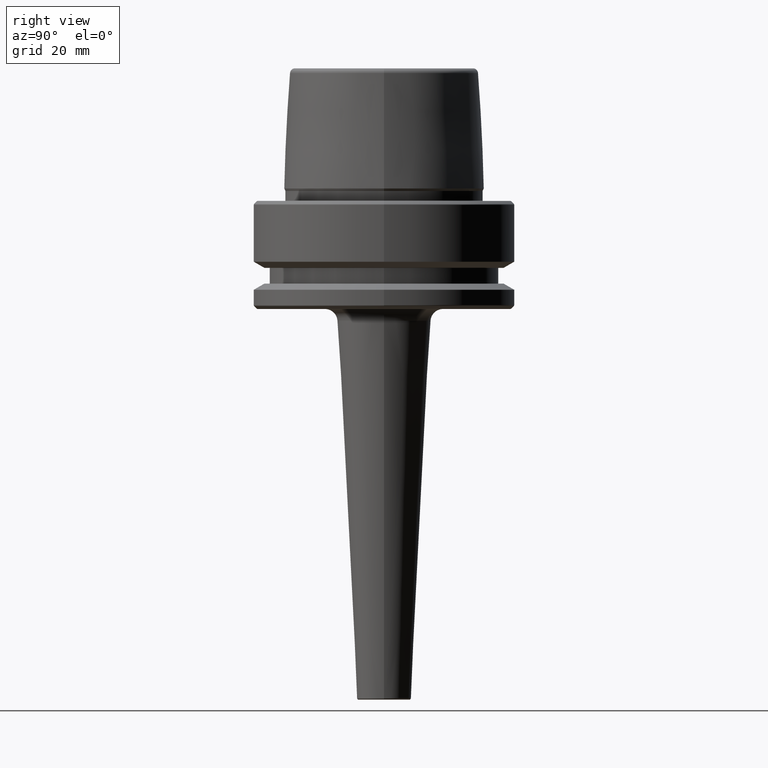
[diagram: clean part render]
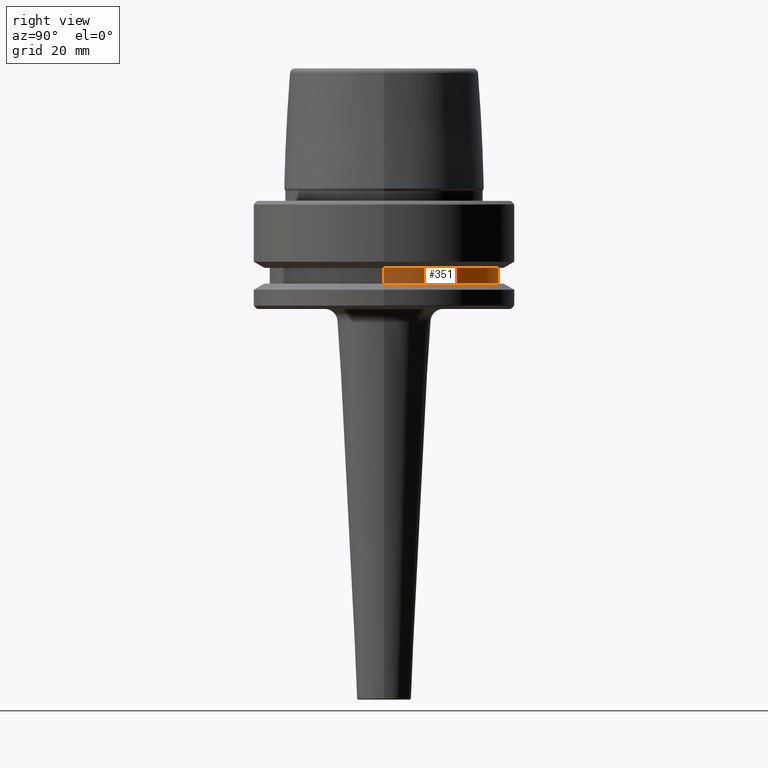
[diagram: same view with one face highlighted and labeled with its STEP entity id]
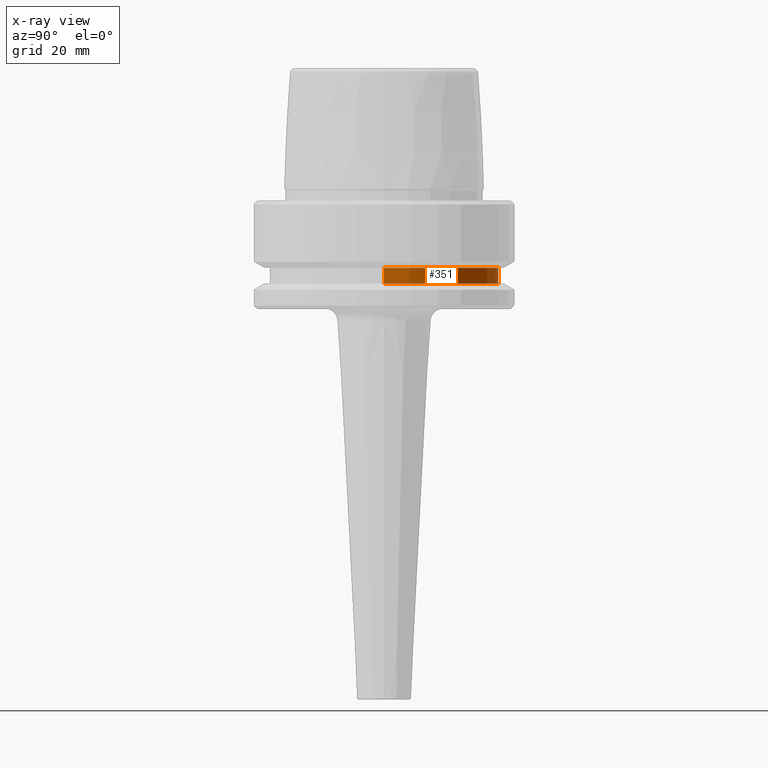
[diagram: x-ray of the same camera — body ghosted, the highlighted face saturated]
A machine part, right view. The second image highlights one B-rep face of the part: STEP entity #351.
The next image is the same camera in x-ray: the body ghosted, the highlighted face saturated — about 0% of this face is hidden behind the body in this view.
In plain terms, the highlighted cylindrical surface (partial cylindrical patch) has radius 27.5 mm, axis along (-0, -0, 1).
Its self-contained STEP definition (entity closure, byte-faithful):
#35 = AXIS2_PLACEMENT_3D ( 'NONE', #57, #913, #644 ) ;
#57 = CARTESIAN_POINT ( 'NONE',  ( 0.0000000000000000000, 0.0000000000000000000, -19.90000000000001600 ) ) ;
#72 = AXIS2_PLACEMENT_3D ( 'NONE', #1113, #833, #544 ) ;
#132 = VERTEX_POINT ( 'NONE', #249 ) ;
#149 = DIRECTION ( 'NONE',  ( 1.000000000000000000, 0.0000000000000000000, 0.0000000000000000000 ) ) ;
#203 = CARTESIAN_POINT ( 'NONE',  ( 27.49999999999999600, 0.0000000000000000000, 78.96908074195309300 ) ) ;
#249 = CARTESIAN_POINT ( 'NONE',  ( -27.49999999999999600, 3.367778697655220900E-015, -16.10000000000001600 ) ) ;
#251 = DIRECTION ( 'NONE',  ( -0.0000000000000000000, -0.0000000000000000000, 1.000000000000000000 ) ) ;
#333 = DIRECTION ( 'NONE',  ( -0.0000000000000000000, -0.0000000000000000000, 1.000000000000000000 ) ) ;
#340 = CARTESIAN_POINT ( 'NONE',  ( -27.49999999999999600, 3.367778697655220900E-015, 78.96908074195309300 ) ) ;
#351 = ADVANCED_FACE ( 'NONE', ( #993 ), #379, .T. ) ;
#353 = ORIENTED_EDGE ( 'NONE', *, *, #590, .T. ) ;
#354 = CARTESIAN_POINT ( 'NONE',  ( 0.0000000000000000000, 0.0000000000000000000, 78.96908074195309300 ) ) ;
#379 = CYLINDRICAL_SURFACE ( 'NONE', #623, 27.49999999999999600 ) ;
#403 = CARTESIAN_POINT ( 'NONE',  ( -27.49999999999999600, 3.367778697655220900E-015, -19.90000000000001600 ) ) ;
#427 = VERTEX_POINT ( 'NONE', #1137 ) ;
#466 = DIRECTION ( 'NONE',  ( -0.0000000000000000000, -0.0000000000000000000, 1.000000000000000000 ) ) ;
#491 = ORIENTED_EDGE ( 'NONE', *, *, #610, .T. ) ;
#523 = ORIENTED_EDGE ( 'NONE', *, *, #719, .F. ) ;
#524 = CIRCLE ( 'NONE', #72, 27.49999999999999600 ) ;
#544 = DIRECTION ( 'NONE',  ( 1.000000000000000000, 0.0000000000000000000, 0.0000000000000000000 ) ) ;
#590 = EDGE_CURVE ( 'NONE', #1139, #132, #724, .T. ) ;
#610 = EDGE_CURVE ( 'NONE', #1003, #1139, #891, .T. ) ;
#614 = EDGE_CURVE ( 'NONE', #427, #132, #524, .T. ) ;
#623 = AXIS2_PLACEMENT_3D ( 'NONE', #354, #466, #149 ) ;
#644 = DIRECTION ( 'NONE',  ( 1.000000000000000000, 0.0000000000000000000, 0.0000000000000000000 ) ) ;
#719 = EDGE_CURVE ( 'NONE', #1003, #427, #1014, .T. ) ;
#724 = LINE ( 'NONE', #340, #1200 ) ;
#833 = DIRECTION ( 'NONE',  ( -0.0000000000000000000, -0.0000000000000000000, 1.000000000000000000 ) ) ;
#891 = CIRCLE ( 'NONE', #35, 27.49999999999999600 ) ;
#913 = DIRECTION ( 'NONE',  ( -0.0000000000000000000, -0.0000000000000000000, 1.000000000000000000 ) ) ;
#975 = CARTESIAN_POINT ( 'NONE',  ( 27.49999999999999600, 0.0000000000000000000, -19.90000000000001600 ) ) ;
#993 = FACE_OUTER_BOUND ( 'NONE', #1123, .T. ) ;
#1003 = VERTEX_POINT ( 'NONE', #975 ) ;
#1014 = LINE ( 'NONE', #203, #1099 ) ;
#1099 = VECTOR ( 'NONE', #251, 1000.000000000000000 ) ;
#1113 = CARTESIAN_POINT ( 'NONE',  ( 0.0000000000000000000, 0.0000000000000000000, -16.10000000000001600 ) ) ;
#1123 = EDGE_LOOP ( 'NONE', ( #491, #353, #1164, #523 ) ) ;
#1137 = CARTESIAN_POINT ( 'NONE',  ( 27.49999999999999600, 0.0000000000000000000, -16.10000000000001600 ) ) ;
#1139 = VERTEX_POINT ( 'NONE', #403 ) ;
#1164 = ORIENTED_EDGE ( 'NONE', *, *, #614, .F. ) ;
#1200 = VECTOR ( 'NONE', #333, 1000.000000000000000 ) ;